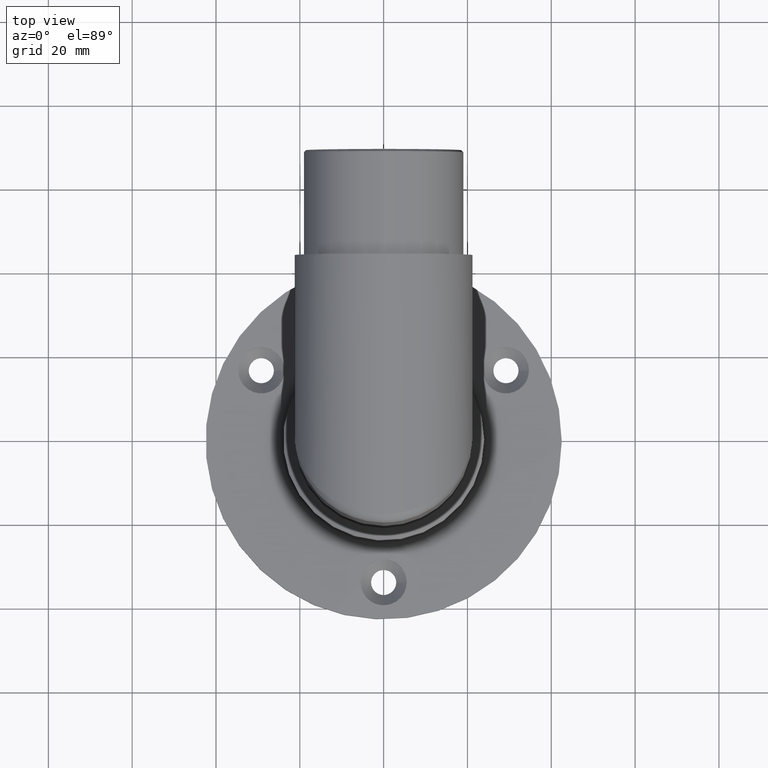
[diagram: clean part render]
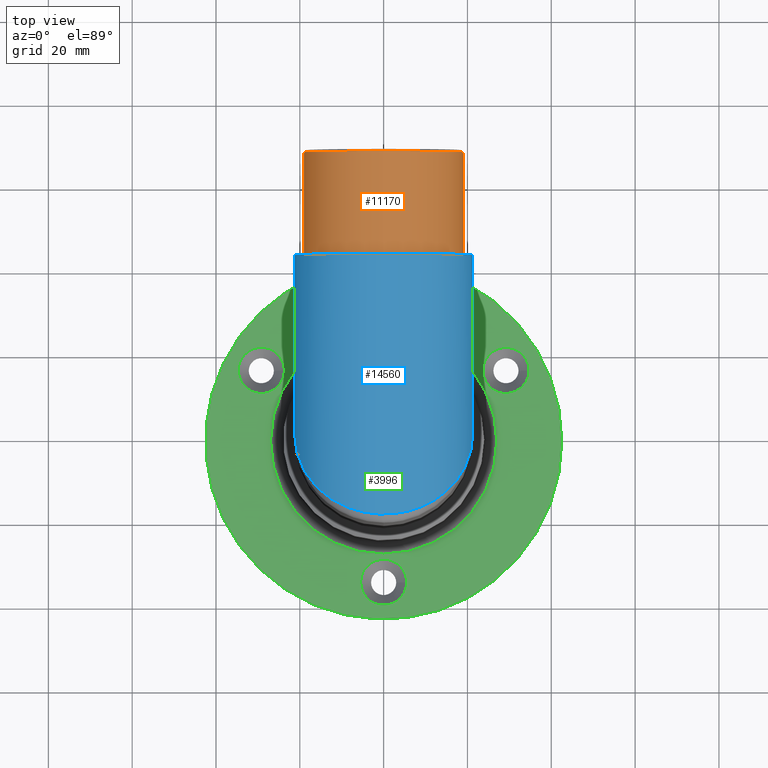
[diagram: same view with three faces highlighted in distinct colors, each labeled with its STEP entity id]
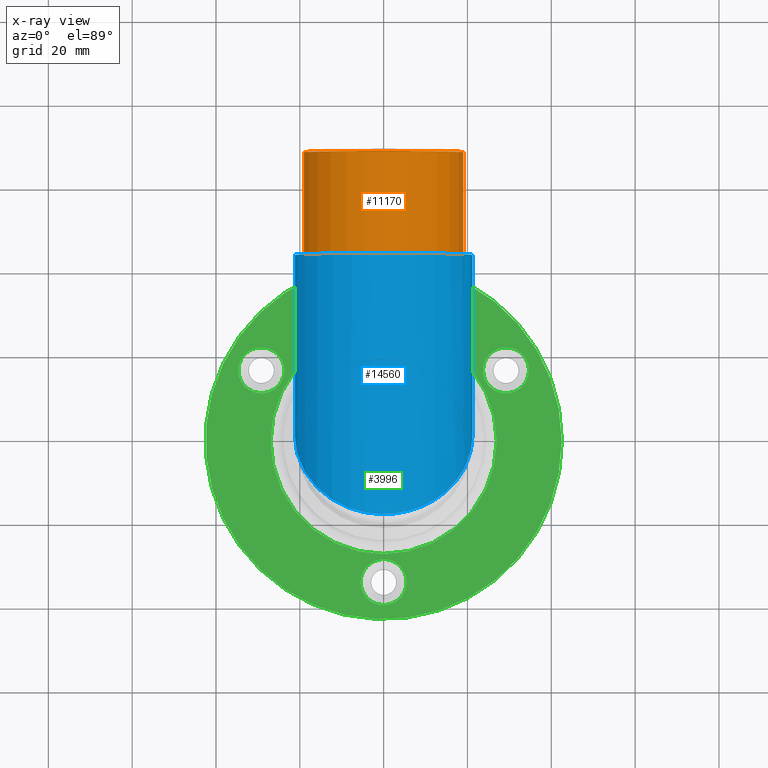
[diagram: x-ray of the same camera — body ghosted, the three highlighted faces saturated]
A machine part, top view with three faces highlighted in distinct colors.
The next image is the same camera in x-ray (body ghosted, the three faces saturated) — at least one of them is partly hidden behind the body in this view.
Their STEP definitions:

[orange] entity #11170 — the highlighted cylindrical surface (bore or boss wall) has radius 19.15 mm, axis along (-0, -1, 0).
#173 = FACE_OUTER_BOUND ( 'NONE', #3025, .T. ) ;
#1533 = CARTESIAN_POINT ( 'NONE',  ( 0.000000000000000000, 67.49999999999997158, 103.1500000000000057 ) ) ;
#2293 = DIRECTION ( 'NONE',  ( -0.000000000000000000, -1.000000000000000000, 1.608122649676636847E-16 ) ) ;
#3025 = EDGE_LOOP ( 'NONE', ( #4149 ) ) ;
#3380 = CARTESIAN_POINT ( 'NONE',  ( 0.000000000000000000, 67.99999999999997158, 84.00000000000000000 ) ) ;
#4149 = ORIENTED_EDGE ( 'NONE', *, *, #12892, .T. ) ;
#4553 = CIRCLE ( 'NONE', #12173, 19.14999999999999858 ) ;
#4722 = FACE_OUTER_BOUND ( 'NONE', #14366, .T. ) ;
#7867 = DIRECTION ( 'NONE',  ( 0.000000000000000000, 0.000000000000000000, -1.000000000000000000 ) ) ;
#8983 = EDGE_CURVE ( 'NONE', #13302, #13302, #4553, .T. ) ;
#9400 = ORIENTED_EDGE ( 'NONE', *, *, #8983, .T. ) ;
#10299 = CYLINDRICAL_SURFACE ( 'NONE', #11731, 19.14999999999999858 ) ;
#10573 = CARTESIAN_POINT ( 'NONE',  ( 0.000000000000000000, 67.49999999999997158, 84.00000000000000000 ) ) ;
#10896 = CARTESIAN_POINT ( 'NONE',  ( 0.000000000000000000, 42.99999999999998579, 84.00000000000000000 ) ) ;
#11170 = ADVANCED_FACE ( 'NONE', ( #4722, #173 ), #10299, .T. ) ;
#11731 = AXIS2_PLACEMENT_3D ( 'NONE', #3380, #2293, #7867 ) ;
#11760 = DIRECTION ( 'NONE',  ( 0.000000000000000000, 0.000000000000000000, 1.000000000000000000 ) ) ;
#11970 = AXIS2_PLACEMENT_3D ( 'NONE', #10896, #14701, #15963 ) ;
#12173 = AXIS2_PLACEMENT_3D ( 'NONE', #10573, #14340, #11760 ) ;
#12892 = EDGE_CURVE ( 'NONE', #15102, #15102, #16414, .T. ) ;
#13302 = VERTEX_POINT ( 'NONE', #1533 ) ;
#14340 = DIRECTION ( 'NONE',  ( 0.000000000000000000, -1.000000000000000000, 0.000000000000000000 ) ) ;
#14366 = EDGE_LOOP ( 'NONE', ( #9400 ) ) ;
#14701 = DIRECTION ( 'NONE',  ( 0.000000000000000000, 1.000000000000000000, -1.608122649676636601E-16 ) ) ;
#15102 = VERTEX_POINT ( 'NONE', #15919 ) ;
#15919 = CARTESIAN_POINT ( 'NONE',  ( 0.000000000000000000, 42.99999999999998579, 103.1500000000000057 ) ) ;
#15963 = DIRECTION ( 'NONE',  ( 0.000000000000000000, 0.000000000000000000, 1.000000000000000000 ) ) ;
#16414 = CIRCLE ( 'NONE', #11970, 19.14999999999999858 ) ;

[blue] entity #14560 — the highlighted cylindrical surface (bore or boss wall) has radius 21.2 mm, axis along (0, 1, 0).
#209 = EDGE_CURVE ( 'NONE', #1310, #9636, #15727, .T. ) ;
#1310 = VERTEX_POINT ( 'NONE', #16373 ) ;
#1450 = CARTESIAN_POINT ( 'NONE',  ( -21.19999999999998863, 46.40000000000000568, 41.60000000000001563 ) ) ;
#1462 = CARTESIAN_POINT ( 'NONE',  ( -21.20000000000000639, -38.40000000000000568, 126.3999999999999915 ) ) ;
#2734 = CIRCLE ( 'NONE', #10906, 21.19999999999999929 ) ;
#2984 = CARTESIAN_POINT ( 'NONE',  ( 0.000000000000000000, -46.74000000000000909, 84.00000000000000000 ) ) ;
#3104 = FACE_OUTER_BOUND ( 'NONE', #15802, .T. ) ;
#4109 = CARTESIAN_POINT ( 'NONE',  ( 21.19999999999999574, -38.40000000000000568, 126.3999999999999915 ) ) ;
#4178 = CARTESIAN_POINT ( 'NONE',  ( 21.19999999999999929, 42.99999999999998579, 84.00000000000000000 ) ) ;
#4243 = DIRECTION ( 'NONE',  ( 0.000000000000000000, 0.000000000000000000, 1.000000000000000000 ) ) ;
#4704 = DIRECTION ( 'NONE',  ( 0.000000000000000000, 1.000000000000000000, -1.608122649676636601E-16 ) ) ;
#5489 = CARTESIAN_POINT ( 'NONE',  ( -21.19999999999999929, -3.453503973595536384E-15, 84.00000000000001421 ) ) ;
#5542 = CARTESIAN_POINT ( 'NONE',  ( 21.19999999999999929, 7.686848468410136180E-16, 84.00000000000000000 ) ) ;
#6068 = FACE_OUTER_BOUND ( 'NONE', #9399, .T. ) ;
#6396 = CARTESIAN_POINT ( 'NONE',  ( 21.19999999999999929, 7.686848468410136180E-16, 84.00000000000000000 ) ) ;
#6505 = CARTESIAN_POINT ( 'NONE',  ( -21.19999999999999929, -3.453503973595536384E-15, 84.00000000000001421 ) ) ;
#9124 =( BOUNDED_CURVE ( )  B_SPLINE_CURVE ( 3, ( #11584, #13951, #1450, #6505 ),
 .UNSPECIFIED., .F., .T. ) 
 B_SPLINE_CURVE_WITH_KNOTS ( ( 4, 4 ),
 ( 1.570796326794896780, 4.712388980384689674 ),
 .UNSPECIFIED. ) 
 CURVE ( )  GEOMETRIC_REPRESENTATION_ITEM ( )  RATIONAL_B_SPLINE_CURVE ( ( 1.000000000000000000, 0.3333333333333333703, 0.3333333333333333703, 1.000000000000000000 ) ) 
 REPRESENTATION_ITEM ( '' )  );
#9399 = EDGE_LOOP ( 'NONE', ( #10966, #12171 ) ) ;
#9636 = VERTEX_POINT ( 'NONE', #6396 ) ;
#10824 = DIRECTION ( 'NONE',  ( 1.000000000000000000, 0.000000000000000000, 0.000000000000000000 ) ) ;
#10906 = AXIS2_PLACEMENT_3D ( 'NONE', #14899, #4704, #10824 ) ;
#10966 = ORIENTED_EDGE ( 'NONE', *, *, #14352, .T. ) ;
#11290 = VERTEX_POINT ( 'NONE', #4178 ) ;
#11584 = CARTESIAN_POINT ( 'NONE',  ( 21.19999999999999929, 7.686848468410136180E-16, 84.00000000000000000 ) ) ;
#11852 = DIRECTION ( 'NONE',  ( 0.000000000000000000, 1.000000000000000000, 0.000000000000000000 ) ) ;
#12171 = ORIENTED_EDGE ( 'NONE', *, *, #209, .T. ) ;
#12588 = EDGE_CURVE ( 'NONE', #11290, #11290, #2734, .T. ) ;
#13139 = ORIENTED_EDGE ( 'NONE', *, *, #12588, .F. ) ;
#13824 = AXIS2_PLACEMENT_3D ( 'NONE', #2984, #11852, #4243 ) ;
#13951 = CARTESIAN_POINT ( 'NONE',  ( 21.19999999999998863, 46.40000000000000568, 41.60000000000001563 ) ) ;
#14352 = EDGE_CURVE ( 'NONE', #9636, #1310, #9124, .T. ) ;
#14560 = ADVANCED_FACE ( 'NONE', ( #6068, #3104 ), #15618, .T. ) ;
#14899 = CARTESIAN_POINT ( 'NONE',  ( 0.000000000000000000, 42.99999999999998579, 84.00000000000000000 ) ) ;
#15618 = CYLINDRICAL_SURFACE ( 'NONE', #13824, 21.19999999999999574 ) ;
#15727 =( BOUNDED_CURVE ( )  B_SPLINE_CURVE ( 3, ( #5489, #1462, #4109, #5542 ),
 .UNSPECIFIED., .F., .F. ) 
 B_SPLINE_CURVE_WITH_KNOTS ( ( 4, 4 ),
 ( 4.712388980384689674, 7.853981633974482790 ),
 .UNSPECIFIED. ) 
 CURVE ( )  GEOMETRIC_REPRESENTATION_ITEM ( )  RATIONAL_B_SPLINE_CURVE ( ( 1.000000000000000000, 0.3333333333333333703, 0.3333333333333333703, 1.000000000000000000 ) ) 
 REPRESENTATION_ITEM ( '' )  );
#15802 = EDGE_LOOP ( 'NONE', ( #13139 ) ) ;
#16373 = CARTESIAN_POINT ( 'NONE',  ( -21.19999999999999929, -3.453503973595536384E-15, 84.00000000000001421 ) ) ;

[green] entity #3996 — the highlighted planar face has unit normal (0, 0, 1).
#165 = CIRCLE ( 'NONE', #3224, 5.499999999999994671 ) ;
#169 = AXIS2_PLACEMENT_3D ( 'NONE', #5026, #13832, #15112 ) ;
#777 = DIRECTION ( 'NONE',  ( 0.000000000000000000, 0.000000000000000000, 1.000000000000000000 ) ) ;
#1008 = CARTESIAN_POINT ( 'NONE',  ( 29.18505610753550528, 16.85000000000014353, 5.000000000000001776 ) ) ;
#1056 = DIRECTION ( 'NONE',  ( -0.000000000000000000, -0.000000000000000000, 1.000000000000000000 ) ) ;
#1124 = FACE_BOUND ( 'NONE', #12797, .T. ) ;
#1513 = DIRECTION ( 'NONE',  ( -0.000000000000000000, -0.000000000000000000, 1.000000000000000000 ) ) ;
#1837 = EDGE_CURVE ( 'NONE', #9764, #9764, #165, .T. ) ;
#1945 = CARTESIAN_POINT ( 'NONE',  ( 42.50000000000000711, 0.000000000000000000, 5.000000000000000000 ) ) ;
#2294 = CARTESIAN_POINT ( 'NONE',  ( -29.18505610753574331, 16.84999999999972786, 5.000000000000001776 ) ) ;
#2335 = FACE_OUTER_BOUND ( 'NONE', #9633, .T. ) ;
#2349 = DIRECTION ( 'NONE',  ( -0.000000000000000000, -0.000000000000000000, 1.000000000000000000 ) ) ;
#2886 = CIRCLE ( 'NONE', #11770, 42.50000000000000711 ) ;
#3224 = AXIS2_PLACEMENT_3D ( 'NONE', #1008, #2349, #12310 ) ;
#3996 = ADVANCED_FACE ( 'NONE', ( #7302, #5664, #1124, #14214, #2335 ), #8757, .T. ) ;
#4350 = VERTEX_POINT ( 'NONE', #1945 ) ;
#4511 = CARTESIAN_POINT ( 'NONE',  ( 0.000000000000000000, 0.000000000000000000, 5.000000000000000000 ) ) ;
#4882 = EDGE_LOOP ( 'NONE', ( #12002 ) ) ;
#5026 = CARTESIAN_POINT ( 'NONE',  ( 0.000000000000000000, 0.000000000000000000, 5.000000000000000000 ) ) ;
#5231 = ORIENTED_EDGE ( 'NONE', *, *, #1837, .F. ) ;
#5277 = CARTESIAN_POINT ( 'NONE',  ( 34.68505610753550172, 16.85000000000014353, 5.000000000000001776 ) ) ;
#5519 = EDGE_CURVE ( 'NONE', #7965, #7965, #8490, .T. ) ;
#5664 = FACE_BOUND ( 'NONE', #4882, .T. ) ;
#5794 = CARTESIAN_POINT ( 'NONE',  ( -23.68505610753574331, 16.84999999999972786, 5.000000000000001776 ) ) ;
#6145 = VERTEX_POINT ( 'NONE', #11951 ) ;
#6540 = VERTEX_POINT ( 'NONE', #5794 ) ;
#6916 = AXIS2_PLACEMENT_3D ( 'NONE', #2294, #1056, #15044 ) ;
#6927 = DIRECTION ( 'NONE',  ( -0.000000000000000000, -0.000000000000000000, -1.000000000000000000 ) ) ;
#7302 = FACE_BOUND ( 'NONE', #15396, .T. ) ;
#7380 = DIRECTION ( 'NONE',  ( 1.000000000000000000, 0.000000000000000000, 0.000000000000000000 ) ) ;
#7563 = ORIENTED_EDGE ( 'NONE', *, *, #14928, .T. ) ;
#7965 = VERTEX_POINT ( 'NONE', #9156 ) ;
#8237 = DIRECTION ( 'NONE',  ( 1.000000000000000000, 0.000000000000000000, 0.000000000000000000 ) ) ;
#8490 = CIRCLE ( 'NONE', #12675, 5.499999999999998224 ) ;
#8757 = PLANE ( 'NONE',  #169 ) ;
#9037 = CARTESIAN_POINT ( 'NONE',  ( 4.127059713126582066E-15, -33.70000000000000284, 5.000000000000001776 ) ) ;
#9156 = CARTESIAN_POINT ( 'NONE',  ( 5.500000000000002665, -33.70000000000000284, 5.000000000000001776 ) ) ;
#9633 = EDGE_LOOP ( 'NONE', ( #7563 ) ) ;
#9725 = CARTESIAN_POINT ( 'NONE',  ( 0.000000000000000000, 0.000000000000000000, 5.000000000000000000 ) ) ;
#9764 = VERTEX_POINT ( 'NONE', #5277 ) ;
#10112 = AXIS2_PLACEMENT_3D ( 'NONE', #4511, #6927, #8237 ) ;
#11770 = AXIS2_PLACEMENT_3D ( 'NONE', #9725, #777, #7380 ) ;
#11951 = CARTESIAN_POINT ( 'NONE',  ( 27.00000000000000355, 0.000000000000000000, 5.000000000000000000 ) ) ;
#12002 = ORIENTED_EDGE ( 'NONE', *, *, #13770, .F. ) ;
#12310 = DIRECTION ( 'NONE',  ( 1.000000000000000000, 0.000000000000000000, 0.000000000000000000 ) ) ;
#12675 = AXIS2_PLACEMENT_3D ( 'NONE', #9037, #1513, #12923 ) ;
#12797 = EDGE_LOOP ( 'NONE', ( #5231 ) ) ;
#12923 = DIRECTION ( 'NONE',  ( 1.000000000000000000, 0.000000000000000000, 0.000000000000000000 ) ) ;
#13411 = ORIENTED_EDGE ( 'NONE', *, *, #5519, .F. ) ;
#13770 = EDGE_CURVE ( 'NONE', #6540, #6540, #14864, .T. ) ;
#13832 = DIRECTION ( 'NONE',  ( 0.000000000000000000, 0.000000000000000000, 1.000000000000000000 ) ) ;
#14214 = FACE_BOUND ( 'NONE', #15806, .T. ) ;
#14821 = EDGE_CURVE ( 'NONE', #6145, #6145, #15819, .T. ) ;
#14864 = CIRCLE ( 'NONE', #6916, 5.499999999999998224 ) ;
#14928 = EDGE_CURVE ( 'NONE', #4350, #4350, #2886, .T. ) ;
#15044 = DIRECTION ( 'NONE',  ( 1.000000000000000000, 0.000000000000000000, 0.000000000000000000 ) ) ;
#15112 = DIRECTION ( 'NONE',  ( 1.000000000000000000, 0.000000000000000000, -0.000000000000000000 ) ) ;
#15396 = EDGE_LOOP ( 'NONE', ( #15771 ) ) ;
#15771 = ORIENTED_EDGE ( 'NONE', *, *, #14821, .T. ) ;
#15806 = EDGE_LOOP ( 'NONE', ( #13411 ) ) ;
#15819 = CIRCLE ( 'NONE', #10112, 27.00000000000000355 ) ;